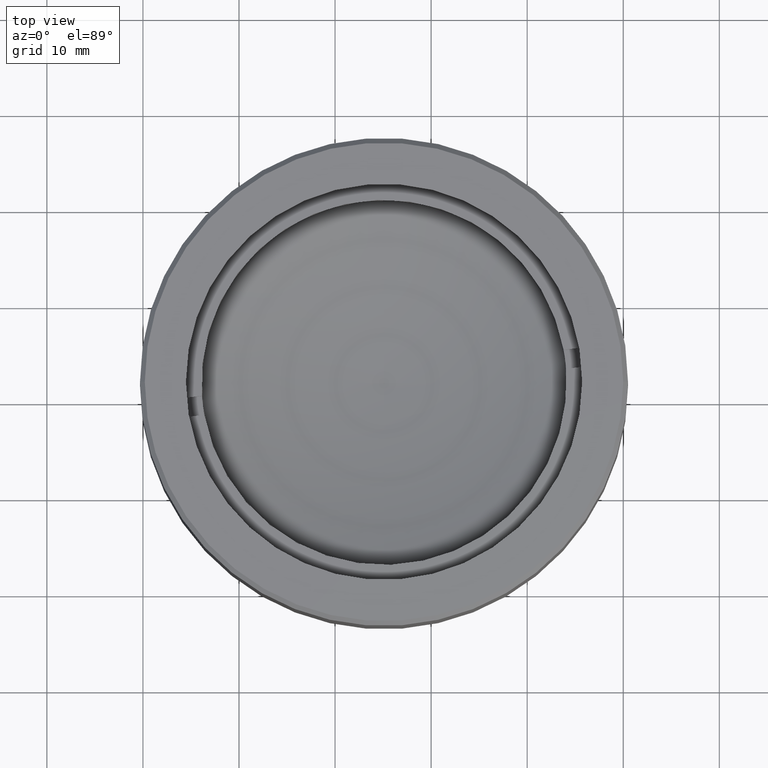
[diagram: clean part render]
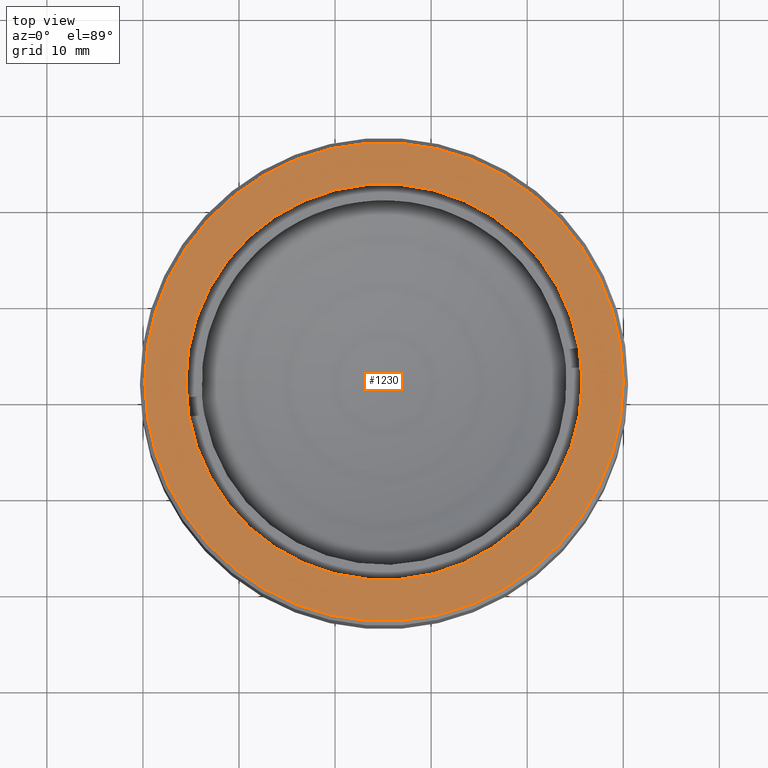
[diagram: same view with one face highlighted and labeled with its STEP entity id]
A machine part, top view. The second image highlights one B-rep face of the part: STEP entity #1230.
In plain terms, the highlighted planar face has unit normal (0, 0, 1).
Its self-contained STEP definition (entity closure, byte-faithful):
#31 = EDGE_CURVE ( 'NONE', #895, #522, #931, .T. ) ;
#45 = DIRECTION ( 'NONE',  ( 0.000000000000000000, 0.000000000000000000, 1.000000000000000000 ) ) ;
#74 = DIRECTION ( 'NONE',  ( 0.000000000000000000, 0.000000000000000000, 1.000000000000000000 ) ) ;
#90 = CARTESIAN_POINT ( 'NONE',  ( 0.000000000000000000, 0.000000000000000000, 25.50000000000000000 ) ) ;
#145 = EDGE_CURVE ( 'NONE', #606, #397, #324, .T. ) ;
#172 = DIRECTION ( 'NONE',  ( 1.000000000000000000, 0.000000000000000000, 0.000000000000000000 ) ) ;
#192 = DIRECTION ( 'NONE',  ( 1.000000000000000000, 0.000000000000000000, -0.000000000000000000 ) ) ;
#200 = CARTESIAN_POINT ( 'NONE',  ( -20.62500000000000000, 2.525834023241415981E-15, 25.50000000000000000 ) ) ;
#225 = DIRECTION ( 'NONE',  ( 1.000000000000000000, 0.000000000000000000, 0.000000000000000000 ) ) ;
#297 = ORIENTED_EDGE ( 'NONE', *, *, #31, .T. ) ;
#301 = CARTESIAN_POINT ( 'NONE',  ( 0.000000000000000000, 0.000000000000000000, 25.50000000000000000 ) ) ;
#324 = CIRCLE ( 'NONE', #961, 20.62500000000000000 ) ;
#397 = VERTEX_POINT ( 'NONE', #1572 ) ;
#486 = DIRECTION ( 'NONE',  ( 0.000000000000000000, 0.000000000000000000, 1.000000000000000000 ) ) ;
#522 = VERTEX_POINT ( 'NONE', #1657 ) ;
#567 = CARTESIAN_POINT ( 'NONE',  ( -24.89999999999999858, 0.000000000000000000, 25.50000000000000000 ) ) ;
#606 = VERTEX_POINT ( 'NONE', #200 ) ;
#653 = DIRECTION ( 'NONE',  ( 0.000000000000000000, 0.000000000000000000, 1.000000000000000000 ) ) ;
#719 = FACE_BOUND ( 'NONE', #1613, .T. ) ;
#735 = CARTESIAN_POINT ( 'NONE',  ( 0.000000000000000000, 0.000000000000000000, 25.50000000000000000 ) ) ;
#741 = EDGE_CURVE ( 'NONE', #522, #895, #1204, .T. ) ;
#847 = AXIS2_PLACEMENT_3D ( 'NONE', #1515, #1003, #857 ) ;
#848 = AXIS2_PLACEMENT_3D ( 'NONE', #1310, #653, #1184 ) ;
#857 = DIRECTION ( 'NONE',  ( 1.000000000000000000, 0.000000000000000000, 0.000000000000000000 ) ) ;
#895 = VERTEX_POINT ( 'NONE', #567 ) ;
#931 = CIRCLE ( 'NONE', #848, 24.89999999999999858 ) ;
#961 = AXIS2_PLACEMENT_3D ( 'NONE', #301, #45, #172 ) ;
#986 = AXIS2_PLACEMENT_3D ( 'NONE', #735, #74, #192 ) ;
#990 = FACE_OUTER_BOUND ( 'NONE', #1435, .T. ) ;
#1003 = DIRECTION ( 'NONE',  ( 0.000000000000000000, 0.000000000000000000, 1.000000000000000000 ) ) ;
#1067 = ORIENTED_EDGE ( 'NONE', *, *, #741, .T. ) ;
#1087 = ORIENTED_EDGE ( 'NONE', *, *, #1368, .F. ) ;
#1184 = DIRECTION ( 'NONE',  ( 1.000000000000000000, 0.000000000000000000, 0.000000000000000000 ) ) ;
#1204 = CIRCLE ( 'NONE', #1385, 24.89999999999999858 ) ;
#1230 = ADVANCED_FACE ( 'NONE', ( #990, #719 ), #1521, .T. ) ;
#1310 = CARTESIAN_POINT ( 'NONE',  ( 0.000000000000000000, 0.000000000000000000, 25.50000000000000000 ) ) ;
#1323 = ORIENTED_EDGE ( 'NONE', *, *, #145, .F. ) ;
#1368 = EDGE_CURVE ( 'NONE', #397, #606, #1593, .T. ) ;
#1385 = AXIS2_PLACEMENT_3D ( 'NONE', #90, #486, #225 ) ;
#1435 = EDGE_LOOP ( 'NONE', ( #297, #1067 ) ) ;
#1515 = CARTESIAN_POINT ( 'NONE',  ( 0.000000000000000000, 0.000000000000000000, 25.50000000000000000 ) ) ;
#1521 = PLANE ( 'NONE',  #986 ) ;
#1572 = CARTESIAN_POINT ( 'NONE',  ( 20.62500000000000000, 0.000000000000000000, 25.50000000000000000 ) ) ;
#1593 = CIRCLE ( 'NONE', #847, 20.62500000000000000 ) ;
#1613 = EDGE_LOOP ( 'NONE', ( #1087, #1323 ) ) ;
#1657 = CARTESIAN_POINT ( 'NONE',  ( 24.89999999999999858, 3.079986699855593078E-15, 25.50000000000000000 ) ) ;